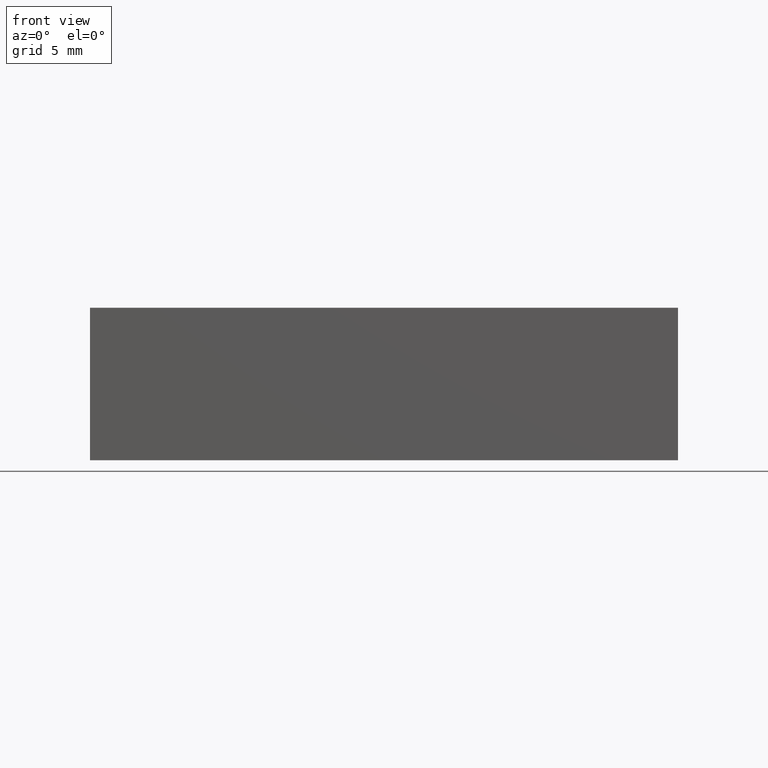
[diagram: clean part render]
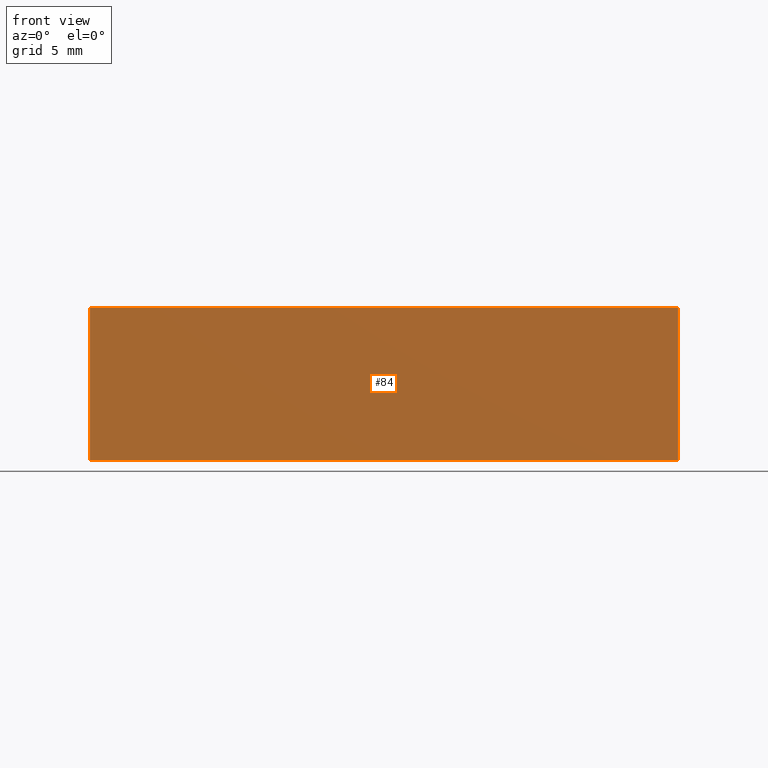
[diagram: same view with one face highlighted and labeled with its STEP entity id]
A machine part, front view. The second image highlights one B-rep face of the part: STEP entity #84.
In plain terms, the highlighted planar face has unit normal (0, -1, 0).
Its self-contained STEP definition (entity closure, byte-faithful):
#18=FACE_OUTER_BOUND('',#23,.T.);
#23=EDGE_LOOP('',(#69,#70,#71,#72));
#26=LINE('',#141,#35);
#30=LINE('',#148,#39);
#32=LINE('',#152,#41);
#33=LINE('',#154,#42);
#35=VECTOR('',#119,10.);
#39=VECTOR('',#125,10.);
#41=VECTOR('',#129,10.);
#42=VECTOR('',#132,10.);
#43=VERTEX_POINT('',#137);
#45=VERTEX_POINT('',#140);
#46=VERTEX_POINT('',#144);
#48=VERTEX_POINT('',#150);
#50=EDGE_CURVE('',#45,#43,#26,.T.);
#54=EDGE_CURVE('',#46,#45,#30,.T.);
#56=EDGE_CURVE('',#43,#48,#32,.T.);
#57=EDGE_CURVE('',#48,#46,#33,.T.);
#69=ORIENTED_EDGE('',*,*,#57,.T.);
#70=ORIENTED_EDGE('',*,*,#54,.T.);
#71=ORIENTED_EDGE('',*,*,#50,.T.);
#72=ORIENTED_EDGE('',*,*,#56,.T.);
#79=PLANE('',#112);
#84=ADVANCED_FACE('',(#18),#79,.T.);
#112=AXIS2_PLACEMENT_3D('',#153,#130,#131);
#119=DIRECTION('',(1.,1.4399779826526E-16,0.));
#125=DIRECTION('',(0.,0.,-1.));
#129=DIRECTION('',(0.,0.,1.));
#130=DIRECTION('center_axis',(1.4399779826526E-16,-1.,0.));
#131=DIRECTION('ref_axis',(0.,0.,-1.));
#132=DIRECTION('',(-1.,-1.4399779826526E-16,0.));
#137=CARTESIAN_POINT('',(38.55,4.44089209850063E-15,-5.));
#140=CARTESIAN_POINT('',(1.27217044249445E-15,-1.11022302462516E-15,-5.));
#141=CARTESIAN_POINT('',(38.55,4.44089209850063E-15,-5.));
#144=CARTESIAN_POINT('',(1.27217044249445E-15,-1.11022302462516E-15,5.));
#148=CARTESIAN_POINT('',(1.27217044249445E-15,-1.11022302462516E-15,0.));
#150=CARTESIAN_POINT('',(38.55,4.44089209850063E-15,5.));
#152=CARTESIAN_POINT('',(38.55,4.44089209850063E-15,0.));
#153=CARTESIAN_POINT('Origin',(38.55,4.44089209850063E-15,0.));
#154=CARTESIAN_POINT('',(38.55,4.44089209850063E-15,5.));